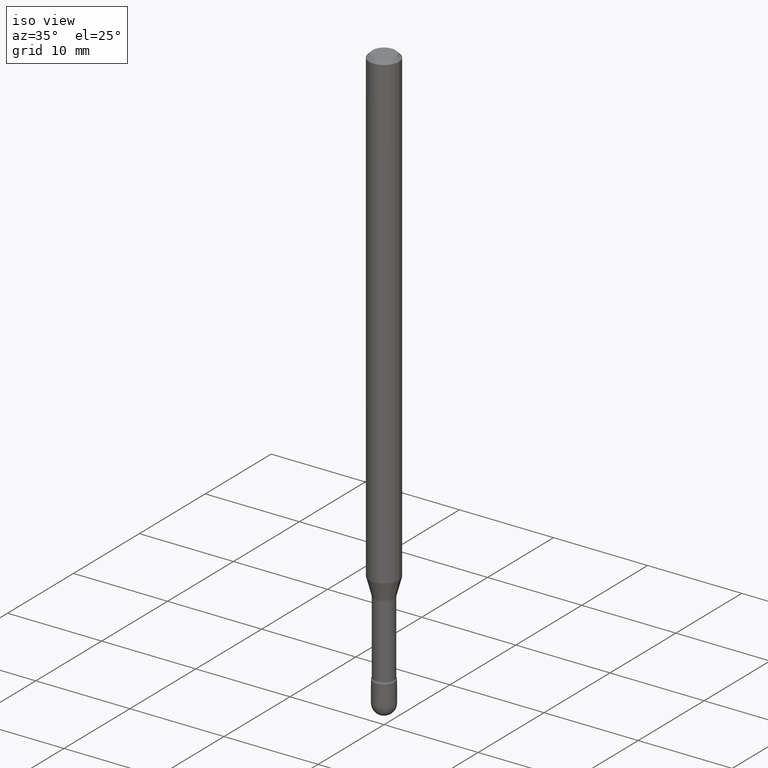
[diagram: clean part render]
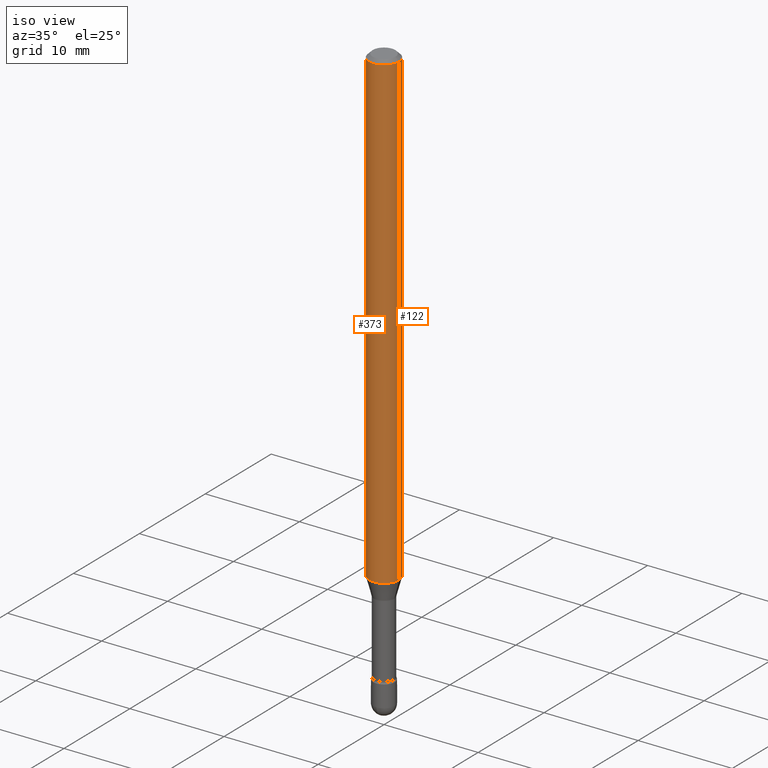
[diagram: same view with one multi-face feature highlighted, each face labeled with its STEP entity id]
A machine part, iso view. The highlighted faces form ONE feature: a constant-radius fillet chain: 2 tangent blend faces with common blend radius 1.5875 mm. The faces share edges in the B-rep.
Their STEP definitions:
[1] entity #373 (Cylinder):
#28 = DIRECTION ( 'NONE',  ( 1.000000000000000000, -6.982962677686262766E-15, 0.000000000000000000 ) ) ;
#37 = CIRCLE ( 'NONE', #553, 0.06250000000000000000 ) ;
#40 = DIRECTION ( 'NONE',  ( 1.000000000000000000, -6.982962677686266711E-15, 0.000000000000000000 ) ) ;
#58 = VERTEX_POINT ( 'NONE', #278 ) ;
#74 = DIRECTION ( 'NONE',  ( -2.445468806185136877E-29, 3.491481338843145188E-15, 1.000000000000000000 ) ) ;
#75 = DIRECTION ( 'NONE',  ( -2.445468806185136597E-29, 3.491481338843145583E-15, 1.000000000000000000 ) ) ;
#96 = ORIENTED_EDGE ( 'NONE', *, *, #152, .F. ) ;
#116 = CARTESIAN_POINT ( 'NONE',  ( 0.06250000000000000000, -4.364351673553899931E-16, 4.780733988912490708E-16 ) ) ;
#137 = CYLINDRICAL_SURFACE ( 'NONE', #198, 0.06250000000000000000 ) ;
#138 = VERTEX_POINT ( 'NONE', #140 ) ;
#140 = CARTESIAN_POINT ( 'NONE',  ( 0.06250000000000000000, -4.888073874380391431E-16, -0.01500000000000008271 ) ) ;
#152 = EDGE_CURVE ( 'NONE', #175, #433, #266, .T. ) ;
#155 = CARTESIAN_POINT ( 'NONE',  ( -0.06250000000000000000, -3.029258376428049791E-15, -0.01500000000000008271 ) ) ;
#173 = CARTESIAN_POINT ( 'NONE',  ( -0.06250000000000000000, 4.440892098500642925E-16, 4.780733988912429571E-16 ) ) ;
#175 = VERTEX_POINT ( 'NONE', #206 ) ;
#198 = AXIS2_PLACEMENT_3D ( 'NONE', #375, #505, #549 ) ;
#201 = DIRECTION ( 'NONE',  ( -2.445468806185136877E-29, 3.491481338843145188E-15, 1.000000000000000000 ) ) ;
#206 = CARTESIAN_POINT ( 'NONE',  ( -0.06250000000000000000, -6.450233742623514724E-15, -1.974612573687109185 ) ) ;
#211 = ORIENTED_EDGE ( 'NONE', *, *, #495, .F. ) ;
#214 = DIRECTION ( 'NONE',  ( -2.445468806185136597E-29, 3.491481338843145583E-15, 1.000000000000000000 ) ) ;
#266 = LINE ( 'NONE', #173, #420 ) ;
#278 = CARTESIAN_POINT ( 'NONE',  ( 0.06250000000000000000, -7.330758119828969798E-15, -1.974612573687109185 ) ) ;
#330 = ORIENTED_EDGE ( 'NONE', *, *, #486, .T. ) ;
#344 = VECTOR ( 'NONE', #74, 39.37007874015748143 ) ;
#345 = EDGE_CURVE ( 'NONE', #175, #58, #481, .T. ) ;
#367 = ORIENTED_EDGE ( 'NONE', *, *, #345, .T. ) ;
#373 = ADVANCED_FACE ( 'NONE', ( #461 ), #137, .T. ) ;
#375 = CARTESIAN_POINT ( 'NONE',  ( -1.169113584055446105E-44, 1.669184350826100908E-30, 4.780733988912460139E-16 ) ) ;
#420 = VECTOR ( 'NONE', #201, 39.37007874015748143 ) ;
#424 = CARTESIAN_POINT ( 'NONE',  ( 3.668203209277725232E-31, -5.237222008264747365E-17, -0.01500000000000008271 ) ) ;
#433 = VERTEX_POINT ( 'NONE', #155 ) ;
#461 = FACE_OUTER_BOUND ( 'NONE', #497, .T. ) ;
#472 = CARTESIAN_POINT ( 'NONE',  ( 4.828853453252775406E-29, -6.894322952473577340E-15, -1.974612573687109185 ) ) ;
#481 = CIRCLE ( 'NONE', #502, 0.06250000000000000000 ) ;
#486 = EDGE_CURVE ( 'NONE', #58, #138, #511, .T. ) ;
#495 = EDGE_CURVE ( 'NONE', #433, #138, #37, .T. ) ;
#497 = EDGE_LOOP ( 'NONE', ( #96, #367, #330, #211 ) ) ;
#502 = AXIS2_PLACEMENT_3D ( 'NONE', #472, #75, #28 ) ;
#505 = DIRECTION ( 'NONE',  ( -2.445468806185136597E-29, 3.491481338843145583E-15, 1.000000000000000000 ) ) ;
#511 = LINE ( 'NONE', #116, #344 ) ;
#549 = DIRECTION ( 'NONE',  ( 1.000000000000000000, -6.982962677686266711E-15, 4.852736867747366207E-29 ) ) ;
#553 = AXIS2_PLACEMENT_3D ( 'NONE', #424, #214, #40 ) ;
[2] entity #122 (Cylinder):
#7 = AXIS2_PLACEMENT_3D ( 'NONE', #349, #203, #301 ) ;
#16 = ORIENTED_EDGE ( 'NONE', *, *, #552, .F. ) ;
#20 = CIRCLE ( 'NONE', #205, 0.06250000000000000000 ) ;
#39 = AXIS2_PLACEMENT_3D ( 'NONE', #485, #521, #348 ) ;
#43 = ORIENTED_EDGE ( 'NONE', *, *, #152, .T. ) ;
#58 = VERTEX_POINT ( 'NONE', #278 ) ;
#74 = DIRECTION ( 'NONE',  ( -2.445468806185136877E-29, 3.491481338843145188E-15, 1.000000000000000000 ) ) ;
#116 = CARTESIAN_POINT ( 'NONE',  ( 0.06250000000000000000, -4.364351673553899931E-16, 4.780733988912490708E-16 ) ) ;
#122 = ADVANCED_FACE ( 'NONE', ( #346 ), #480, .T. ) ;
#138 = VERTEX_POINT ( 'NONE', #140 ) ;
#140 = CARTESIAN_POINT ( 'NONE',  ( 0.06250000000000000000, -4.888073874380391431E-16, -0.01500000000000008271 ) ) ;
#152 = EDGE_CURVE ( 'NONE', #175, #433, #266, .T. ) ;
#155 = CARTESIAN_POINT ( 'NONE',  ( -0.06250000000000000000, -3.029258376428049791E-15, -0.01500000000000008271 ) ) ;
#158 = DIRECTION ( 'NONE',  ( 1.000000000000000000, -6.982962677686262766E-15, 0.000000000000000000 ) ) ;
#173 = CARTESIAN_POINT ( 'NONE',  ( -0.06250000000000000000, 4.440892098500642925E-16, 4.780733988912429571E-16 ) ) ;
#175 = VERTEX_POINT ( 'NONE', #206 ) ;
#201 = DIRECTION ( 'NONE',  ( -2.445468806185136877E-29, 3.491481338843145188E-15, 1.000000000000000000 ) ) ;
#203 = DIRECTION ( 'NONE',  ( -2.445468806185136597E-29, 3.491481338843145583E-15, 1.000000000000000000 ) ) ;
#205 = AXIS2_PLACEMENT_3D ( 'NONE', #555, #385, #158 ) ;
#206 = CARTESIAN_POINT ( 'NONE',  ( -0.06250000000000000000, -6.450233742623514724E-15, -1.974612573687109185 ) ) ;
#248 = CIRCLE ( 'NONE', #39, 0.06250000000000000000 ) ;
#266 = LINE ( 'NONE', #173, #420 ) ;
#278 = CARTESIAN_POINT ( 'NONE',  ( 0.06250000000000000000, -7.330758119828969798E-15, -1.974612573687109185 ) ) ;
#286 = ORIENTED_EDGE ( 'NONE', *, *, #486, .F. ) ;
#301 = DIRECTION ( 'NONE',  ( 1.000000000000000000, -6.982962677686266711E-15, 4.852736867747366207E-29 ) ) ;
#344 = VECTOR ( 'NONE', #74, 39.37007874015748143 ) ;
#346 = FACE_OUTER_BOUND ( 'NONE', #376, .T. ) ;
#348 = DIRECTION ( 'NONE',  ( 1.000000000000000000, -6.982962677686266711E-15, 0.000000000000000000 ) ) ;
#349 = CARTESIAN_POINT ( 'NONE',  ( -1.169113584055446105E-44, 1.669184350826100908E-30, 4.780733988912460139E-16 ) ) ;
#376 = EDGE_LOOP ( 'NONE', ( #435, #43, #16, #286 ) ) ;
#385 = DIRECTION ( 'NONE',  ( -2.445468806185136597E-29, 3.491481338843145583E-15, 1.000000000000000000 ) ) ;
#420 = VECTOR ( 'NONE', #201, 39.37007874015748143 ) ;
#433 = VERTEX_POINT ( 'NONE', #155 ) ;
#435 = ORIENTED_EDGE ( 'NONE', *, *, #471, .T. ) ;
#471 = EDGE_CURVE ( 'NONE', #58, #175, #20, .T. ) ;
#480 = CYLINDRICAL_SURFACE ( 'NONE', #7, 0.06250000000000000000 ) ;
#485 = CARTESIAN_POINT ( 'NONE',  ( 3.668203209277725232E-31, -5.237222008264747365E-17, -0.01500000000000008271 ) ) ;
#486 = EDGE_CURVE ( 'NONE', #58, #138, #511, .T. ) ;
#511 = LINE ( 'NONE', #116, #344 ) ;
#521 = DIRECTION ( 'NONE',  ( -2.445468806185136597E-29, 3.491481338843145583E-15, 1.000000000000000000 ) ) ;
#552 = EDGE_CURVE ( 'NONE', #138, #433, #248, .T. ) ;
#555 = CARTESIAN_POINT ( 'NONE',  ( 4.828853453252775406E-29, -6.894322952473577340E-15, -1.974612573687109185 ) ) ;